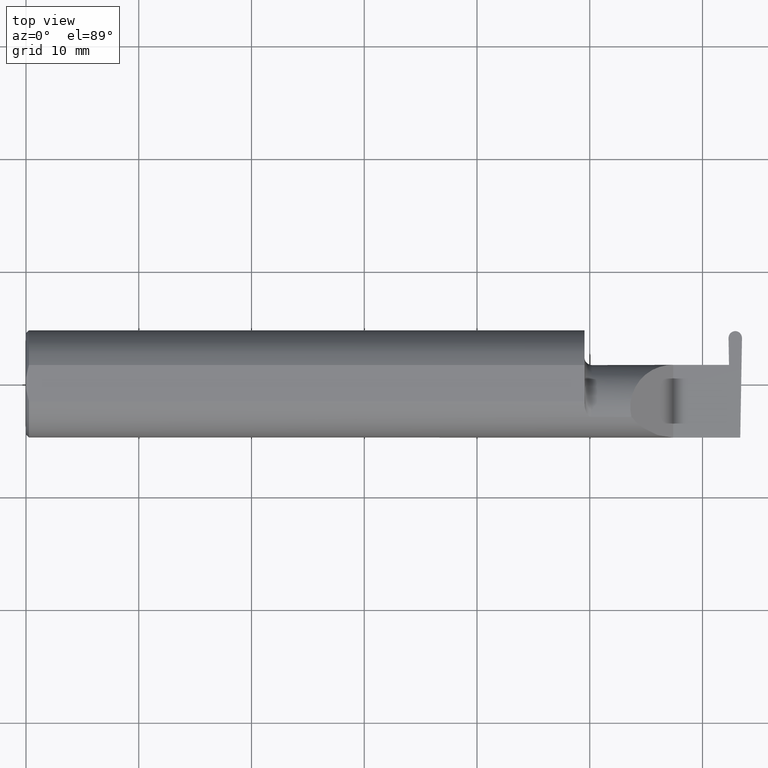
[diagram: clean part render]
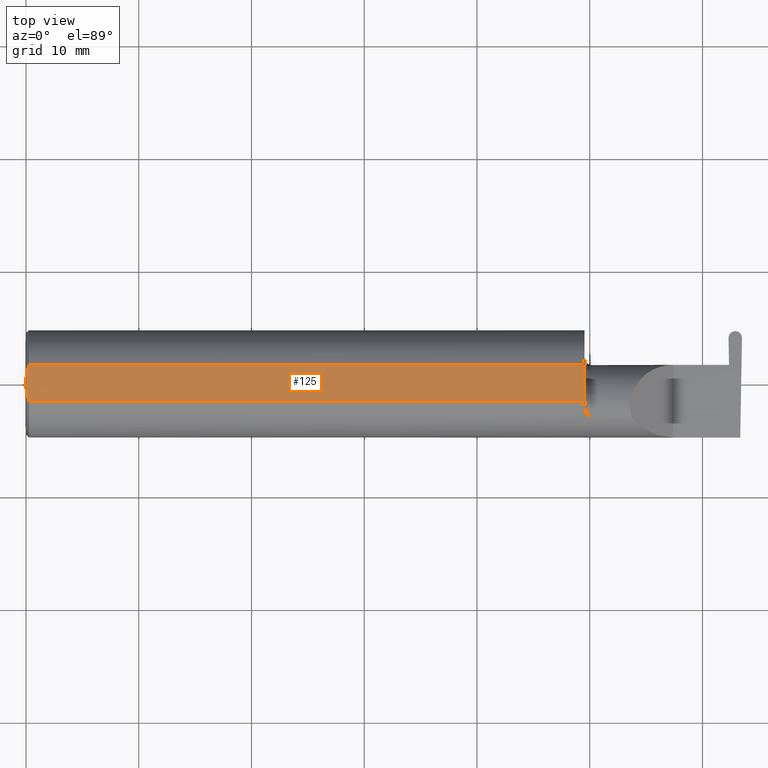
[diagram: same view with one face highlighted and labeled with its STEP entity id]
A machine part, top view. The second image highlights one B-rep face of the part: STEP entity #125.
In plain terms, the highlighted planar face has unit normal (0, 0, 1).
Its self-contained STEP definition (entity closure, byte-faithful):
#1 = VERTEX_POINT ( 'NONE', #477 ) ;
#4 = LINE ( 'NONE', #442, #279 ) ;
#9 = DIRECTION ( 'NONE',  ( -0.000000000000000000, 1.000000000000000000, -0.000000000000000000 ) ) ;
#26 = EDGE_CURVE ( 'NONE', #470, #412, #154, .T. ) ;
#29 = AXIS2_PLACEMENT_3D ( 'NONE', #660, #497, #556 ) ;
#32 = CARTESIAN_POINT ( 'NONE',  ( 0.009999999999999346217, 0.06325108694718235836, 0.1763499999999999235 ) ) ;
#47 = B_SPLINE_CURVE_WITH_KNOTS ( 'NONE', 3,
 ( #415, #309, #241, #425 ),
 .UNSPECIFIED., .F., .F.,
 ( 4, 4 ),
 ( 0.009771445421851449736, 0.01092787937989102981 ),
 .UNSPECIFIED. ) ;
#48 = LINE ( 'NONE', #211, #199 ) ;
#49 = DIRECTION ( 'NONE',  ( -3.394713289407038742E-17, 1.000000000000000000, 0.000000000000000000 ) ) ;
#98 = ORIENTED_EDGE ( 'NONE', *, *, #522, .F. ) ;
#125 = ADVANCED_FACE ( 'NONE', ( #616 ), #329, .T. ) ;
#133 = LINE ( 'NONE', #625, #525 ) ;
#154 = LINE ( 'NONE', #704, #703 ) ;
#178 = ORIENTED_EDGE ( 'NONE', *, *, #382, .F. ) ;
#186 = EDGE_CURVE ( 'NONE', #1, #633, #4, .T. ) ;
#189 = DIRECTION ( 'NONE',  ( -1.000000000000000000, -0.000000000000000000, -0.000000000000000000 ) ) ;
#199 = VECTOR ( 'NONE', #661, 39.37007874015748143 ) ;
#211 = CARTESIAN_POINT ( 'NONE',  ( 0.000000000000000000, -0.06325108694718235836, 0.1763499999999999235 ) ) ;
#212 = CARTESIAN_POINT ( 'NONE',  ( 0.000000000000000000, 0.01880691362239451242, 0.1763499999999999235 ) ) ;
#241 = CARTESIAN_POINT ( 'NONE',  ( 0.001595548104417217512, -0.03385300050298979679, 0.1763499999999999235 ) ) ;
#255 = ORIENTED_EDGE ( 'NONE', *, *, #186, .F. ) ;
#259 = CARTESIAN_POINT ( 'NONE',  ( 0.009999999999999346217, 0.06325108694718235836, 0.1763499999999999235 ) ) ;
#279 = VECTOR ( 'NONE', #9, 39.37007874015748143 ) ;
#309 = CARTESIAN_POINT ( 'NONE',  ( 0.005151108632379595466, -0.04888864921576189376, 0.1763499999999999235 ) ) ;
#329 = PLANE ( 'NONE',  #29 ) ;
#341 = ORIENTED_EDGE ( 'NONE', *, *, #26, .T. ) ;
#345 = CARTESIAN_POINT ( 'NONE',  ( 0.005155213631852355663, 0.04890080824240217866, 0.1763499999999999235 ) ) ;
#346 = EDGE_LOOP ( 'NONE', ( #669, #341, #600, #178, #255, #98 ) ) ;
#382 = EDGE_CURVE ( 'NONE', #633, #632, #506, .T. ) ;
#390 = EDGE_CURVE ( 'NONE', #412, #632, #133, .T. ) ;
#409 = CARTESIAN_POINT ( 'NONE',  ( 0.000000000000000000, 0.01880691362239451242, 0.1763499999999999235 ) ) ;
#412 = VERTEX_POINT ( 'NONE', #457 ) ;
#415 = CARTESIAN_POINT ( 'NONE',  ( 0.009999999999999346217, -0.06325108694718235836, 0.1763499999999999235 ) ) ;
#425 = CARTESIAN_POINT ( 'NONE',  ( 0.000000000000000000, -0.01880691362239451242, 0.1763499999999999235 ) ) ;
#442 = CARTESIAN_POINT ( 'NONE',  ( 0.000000000000000000, 0.1873499999999998500, 0.1763499999999999235 ) ) ;
#457 = CARTESIAN_POINT ( 'NONE',  ( 1.949999999999999956, 0.06325108694718235836, 0.1763499999999999235 ) ) ;
#470 = VERTEX_POINT ( 'NONE', #513 ) ;
#477 = CARTESIAN_POINT ( 'NONE',  ( 0.000000000000000000, -0.01880691362239451242, 0.1763499999999999235 ) ) ;
#495 = CARTESIAN_POINT ( 'NONE',  ( 0.009999999999999346217, -0.06325108694718235836, 0.1763499999999999235 ) ) ;
#497 = DIRECTION ( 'NONE',  ( 0.000000000000000000, 0.000000000000000000, 1.000000000000000000 ) ) ;
#506 = B_SPLINE_CURVE_WITH_KNOTS ( 'NONE', 3,
 ( #409, #634, #345, #32 ),
 .UNSPECIFIED., .F., .F.,
 ( 4, 4 ),
 ( 0.01188664626022267051, 0.01304646959483758001 ),
 .UNSPECIFIED. ) ;
#513 = CARTESIAN_POINT ( 'NONE',  ( 1.949999999999999956, -0.06325108694718283020, 0.1763499999999999235 ) ) ;
#522 = EDGE_CURVE ( 'NONE', #695, #1, #47, .T. ) ;
#525 = VECTOR ( 'NONE', #189, 39.37007874015748143 ) ;
#556 = DIRECTION ( 'NONE',  ( 1.000000000000000000, 0.000000000000000000, -0.000000000000000000 ) ) ;
#600 = ORIENTED_EDGE ( 'NONE', *, *, #390, .T. ) ;
#616 = FACE_OUTER_BOUND ( 'NONE', #346, .T. ) ;
#625 = CARTESIAN_POINT ( 'NONE',  ( 0.000000000000000000, 0.06325108694718235836, 0.1763499999999999235 ) ) ;
#632 = VERTEX_POINT ( 'NONE', #259 ) ;
#633 = VERTEX_POINT ( 'NONE', #212 ) ;
#634 = CARTESIAN_POINT ( 'NONE',  ( 0.001616639753276218755, 0.03405189565400963680, 0.1763499999999999235 ) ) ;
#652 = EDGE_CURVE ( 'NONE', #695, #470, #48, .T. ) ;
#660 = CARTESIAN_POINT ( 'NONE',  ( 2.876828993045917215, 0.1873499999999998500, 0.1763499999999999235 ) ) ;
#661 = DIRECTION ( 'NONE',  ( 1.000000000000000000, 0.000000000000000000, 0.000000000000000000 ) ) ;
#669 = ORIENTED_EDGE ( 'NONE', *, *, #652, .T. ) ;
#695 = VERTEX_POINT ( 'NONE', #495 ) ;
#703 = VECTOR ( 'NONE', #49, 39.37007874015748143 ) ;
#704 = CARTESIAN_POINT ( 'NONE',  ( 1.949999999999999956, 0.1873499999999998222, 0.1763499999999999235 ) ) ;